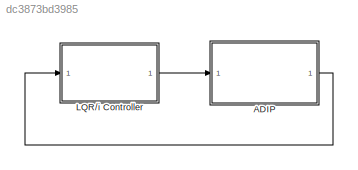
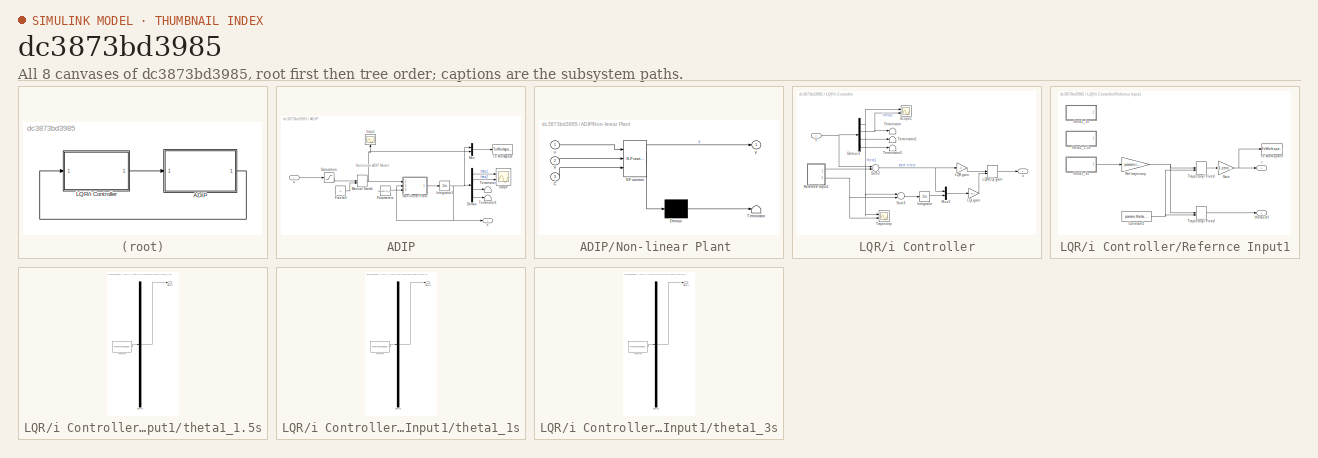
[diagram: thumbnail index - all 8 canvases of the model, root first then tree order]
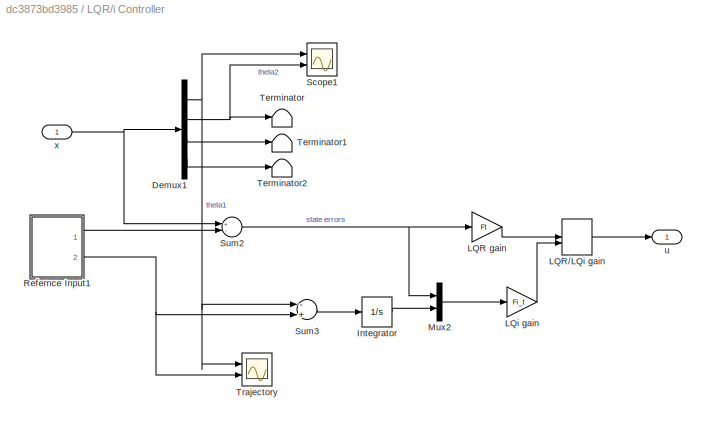
MODEL slx_dc3873bd3985
KIND model
CONFIG AbsTol = auto
CONFIG EnableMultiTasking = off
CONFIG FixedStep = 0.005
CONFIG MaxStep = 0.2
CONFIG MinStep = auto
CONFIG RelTol = 1e-3
CONFIG SampleTimeConstraint = Unconstrained
CONFIG Solver = ode45
CONFIG SolverName = ode45
CONFIG StartTime = 0.0
CONFIG StopTime = 25
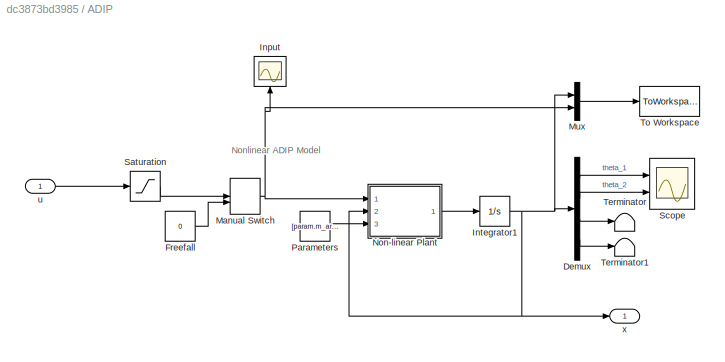
BLOCK [SubSystem] ADIP
  Ports = [1, 1]
  RequestExecContextInheritance = off
BLOCK [Demux] ADIP/Demux
  DisplayOption = bar
  Ports = [1, 4]
BLOCK [Constant] ADIP/Freefall
  Value = 0
BLOCK [Scope] ADIP/Input
  Floating = off
  NumInputPorts = 1
  Ports = [1]
  ScopeSpecificationString = Simulink.scopes.TimeScopeBlockCfg('CurrentConfiguration', extmgr.ConfigurationSet(extmgr.Configuration('Core','General UI',true),extmgr.Configuration('Core','Source UI',true),extmgr.Configuration('Sources','WiredSimulink',true,'DataLoggingVariableName','ScopeData1'),extmgr.Configuration('Visuals','Time Domain',true,'SerializedDisplays',{struct('MinYLimReal','-1.00000','MaxYLimReal','1.00000','YLab...<+1442ch>
BLOCK [Integrator] ADIP/Integrator1
  InitialCondition = param.theta0
  Ports = [1, 1]
BLOCK [ManualSwitch] ADIP/Manual Switch
BLOCK [Mux] ADIP/Mux
  DisplayOption = bar
  Inputs = 2
  Ports = [2, 1]
BLOCK [SubSystem] ADIP/Non-linear Plant 
  ErrorFcn = Stateflow.Translate.translate
  PermitHierarchicalResolution = ExplicitOnly
  Ports = [3, 1]
  RequestExecContextInheritance = off
  SFBlockType = MATLAB Function
  TreatAsAtomicUnit = on
BLOCK [Demux] ADIP/Non-linear Plant / Demux 
  Outputs = 1
  Ports = [1, 1]
BLOCK [S-Function] ADIP/Non-linear Plant / SFunction 
  EnableBusSupport = on
  FunctionName = sf_sfun
  PortCounts = [3 2]
  Ports = [3, 2]
  SFcnIsStateOwnerBlock = off
  SFunctionDeploymentMode = off
  Tag = Stateflow S-Function ADIP_LocalSim 2
BLOCK [Terminator] ADIP/Non-linear Plant / Terminator 
BLOCK [Inport] ADIP/Non-linear Plant /C
  IconDisplay = Port number
  Port = 3
BLOCK [Inport] ADIP/Non-linear Plant /Y
  IconDisplay = Port number
  Port = 2
BLOCK [Inport] ADIP/Non-linear Plant /u
  IconDisplay = Port number
BLOCK [Outport] ADIP/Non-linear Plant /y
  IconDisplay = Port number
BLOCK [Constant] ADIP/Parameters
  Value = [param.m_arm,param.m_pend,param.m_hinge,param.l_pivot,param.l_pend,param.g,param.Jarm,param.Jpend,param.Jl,param.Jhinge, param.C_arm,param.C_pend]
BLOCK [Saturate] ADIP/Saturation
  InputPortMap = u0
  LowerLimit = -2.5
  Ports = [1, 1]
  UpperLimit = 2.5
BLOCK [Scope] ADIP/Scope
  Floating = off
  NumInputPorts = 2
  Ports = [2]
  ScopeSpecificationString = Simulink.scopes.TimeScopeBlockCfg('CurrentConfiguration', extmgr.ConfigurationSet(extmgr.Configuration('Core','General UI',true,'FigureColor',[0 0 0]),extmgr.Configuration('Core','Source UI',true),extmgr.Configuration('Sources','WiredSimulink',true,'DataLoggingVariableName','ScopeData2'),extmgr.Configuration('Visuals','Time Domain',true,'SerializedDisplays',{struct('MinYLimReal','-3775834382423303...<+2841ch>
BLOCK [Terminator] ADIP/Terminator
BLOCK [Terminator] ADIP/Terminator1
BLOCK [ToWorkspace] ADIP/To Workspace
  FixptAsFi = on
  MaxDataPoints = inf
  Ports = [1]
  SampleTime = -1
  VariableName = data
BLOCK [Inport] ADIP/u
  IconDisplay = Port number
BLOCK [Outport] ADIP/x
  IconDisplay = Port number
BLOCK [SubSystem] LQR//i Controller
  Ports = [1, 1]
  RequestExecContextInheritance = off
BLOCK [Demux] LQR//i Controller/Demux1
  DisplayOption = bar
  Ports = [1, 4]
BLOCK [Integrator] LQR//i Controller/Integrator
  Ports = [1, 1]
BLOCK [Gain] LQR//i Controller/LQR gain
  Gain = Ft
  Multiplication = Matrix(K*u)
  OutDataTypeStr = Inherit: Inherit via internal rule
  ParamDataTypeStr = Inherit: Inherit via internal rule
  SaturateOnIntegerOverflow = off
BLOCK [ManualSwitch] LQR//i Controller/LQR//LQi gain
  CurrentSetting = 0
BLOCK [Gain] LQR//i Controller/LQi gain
  Gain = Fi_t
  Multiplication = Matrix(K*u)
  OutDataTypeStr = Inherit: Inherit via internal rule
  ParamDataTypeStr = Inherit: Inherit via internal rule
  SaturateOnIntegerOverflow = off
BLOCK [Mux] LQR//i Controller/Mux2
  DisplayOption = bar
  Inputs = 2
  Ports = [2, 1]
BLOCK [SubSystem] LQR//i Controller/Refernce Input1
  Ports = [0, 2]
  RequestExecContextInheritance = off
BLOCK [Constant] LQR//i Controller/Refernce Input1/Constant1
  Value = param.thetaT(1)
BLOCK [Gain] LQR//i Controller/Refernce Input1/Gain
  Gain = [1,zeros(1,size(At,1)-1)]
  OutDataTypeStr = Inherit: Inherit via internal rule
  ParamDataTypeStr = Inherit: Inherit via internal rule
  SaturateOnIntegerOverflow = off
BLOCK [Gain] LQR//i Controller/Refernce Input1/Ref trajectory
  Gain = param.rmax
  OutDataTypeStr = Inherit: Inherit via internal rule
  ParamDataTypeStr = Inherit: Inherit via internal rule
  SaturateOnIntegerOverflow = off
BLOCK [ToWorkspace] LQR//i Controller/Refernce Input1/To Workspace
  FixptAsFi = on
  MaxDataPoints = inf
  Ports = [1]
  SampleTime = -1
  VariableName = Ref
BLOCK [ManualSwitch] LQR//i Controller/Refernce Input1/Trajectory// Fixed
BLOCK [ManualSwitch] LQR//i Controller/Refernce Input1/Trajectory// Fixed 
BLOCK [Outport] LQR//i Controller/Refernce Input1/r
  IconDisplay = Port number
BLOCK [SubSystem] LQR//i Controller/Refernce Input1/theta1_1.5s
  ClipboardFcn = sigbuilder_block('clipboard');
  CloseFcn = sigbuilder_block('close');
  Commented = on
  ContinueFcn = sigbuilder_block('continue');
  CopyFcn = sigbuilder_block('copy');
  DeleteFcn = sigbuilder_block('delete');
  LoadFcn = sigbuilder_block('load');
  MaskHideContents = on
  ModelCloseFcn = sigbuilder_block('modelClose');
  NameChangeFcn = sigbuilder_block('namechange');
  OpenFcn = sigbuilder_block('open',[5.5 30 1909 958 ]);
  PauseFcn = sigbuilder_block('pause');
  Ports = [0, 1]
  PreSaveFcn = sigbuilder_block('preSave');
  RequestExecContextInheritance = off
  StartFcn = sigbuilder_block('start');
  StopFcn = sigbuilder_block('stop');
  Tag = STV Subsys
BLOCK [Demux] LQR//i Controller/Refernce Input1/theta1_1.5s/Demux
  Outputs = 1
  Ports = [1, 1]
  Tag = STV Demux
BLOCK [FromWorkspace] LQR//i Controller/Refernce Input1/theta1_1.5s/FromWs
  SampleTime = 0
  Tag = STV FromWs
  VariableName = tuvar
  ZeroCross = on
BLOCK [Outport] LQR//i Controller/Refernce Input1/theta1_1.5s/Signal 1
  IconDisplay = Port number
  Tag = STV Outport
BLOCK [SubSystem] LQR//i Controller/Refernce Input1/theta1_1s
  ClipboardFcn = sigbuilder_block('clipboard');
  CloseFcn = sigbuilder_block('close');
  Commented = on
  ContinueFcn = sigbuilder_block('continue');
  CopyFcn = sigbuilder_block('copy');
  DeleteFcn = sigbuilder_block('delete');
  LoadFcn = sigbuilder_block('load');
  MaskHideContents = on
  ModelCloseFcn = sigbuilder_block('modelClose');
  NameChangeFcn = sigbuilder_block('namechange');
  OpenFcn = sigbuilder_block('open',[5.5 30 1909 958 ]);
  PauseFcn = sigbuilder_block('pause');
  Ports = [0, 1]
  PreSaveFcn = sigbuilder_block('preSave');
  RequestExecContextInheritance = off
  StartFcn = sigbuilder_block('start');
  StopFcn = sigbuilder_block('stop');
  Tag = STV Subsys
BLOCK [Demux] LQR//i Controller/Refernce Input1/theta1_1s/Demux
  Outputs = 1
  Ports = [1, 1]
  Tag = STV Demux
BLOCK [FromWorkspace] LQR//i Controller/Refernce Input1/theta1_1s/FromWs
  SampleTime = 0
  Tag = STV FromWs
  VariableName = tuvar
  ZeroCross = on
BLOCK [Outport] LQR//i Controller/Refernce Input1/theta1_1s/Signal 1
  IconDisplay = Port number
  Tag = STV Outport
BLOCK [SubSystem] LQR//i Controller/Refernce Input1/theta1_3s
  ClipboardFcn = sigbuilder_block('clipboard');
  CloseFcn = sigbuilder_block('close');
  ContinueFcn = sigbuilder_block('continue');
  CopyFcn = sigbuilder_block('copy');
  DeleteFcn = sigbuilder_block('delete');
  LoadFcn = sigbuilder_block('load');
  MaskHideContents = on
  ModelCloseFcn = sigbuilder_block('modelClose');
  NameChangeFcn = sigbuilder_block('namechange');
  OpenFcn = sigbuilder_block('open',[5.5 30 1909 958 ]);
  PauseFcn = sigbuilder_block('pause');
  Ports = [0, 1]
  PreSaveFcn = sigbuilder_block('preSave');
  RequestExecContextInheritance = off
  StartFcn = sigbuilder_block('start');
  StopFcn = sigbuilder_block('stop');
  Tag = STV Subsys
BLOCK [Demux] LQR//i Controller/Refernce Input1/theta1_3s/Demux
  Outputs = 1
  Ports = [1, 1]
  Tag = STV Demux
BLOCK [FromWorkspace] LQR//i Controller/Refernce Input1/theta1_3s/FromWs
  SampleTime = 0
  Tag = STV FromWs
  VariableName = tuvar
  ZeroCross = on
BLOCK [Outport] LQR//i Controller/Refernce Input1/theta1_3s/Signal 1
  IconDisplay = Port number
  Tag = STV Outport
BLOCK [Outport] LQR//i Controller/Refernce Input1/theta1ref
  IconDisplay = Port number
  Port = 2
BLOCK [Scope] LQR//i Controller/Scope1
  Floating = off
  NumInputPorts = 2
  Ports = [2]
  ScopeSpecificationString = Simulink.scopes.TimeScopeBlockCfg('CurrentConfiguration', extmgr.ConfigurationSet(extmgr.Configuration('Core','General UI',true),extmgr.Configuration('Core','Source UI',true),extmgr.Configuration('Sources','WiredSimulink',true,'DataLoggingVariableName','ScopeData1'),extmgr.Configuration('Visuals','Time Domain',true,'SerializedDisplays',{struct('MinYLimReal','-1.04578','MaxYLimReal','1.12776','YLab...<+1445ch>
BLOCK [Sum] LQR//i Controller/Sum2
  InputSameDT = off
  Inputs = +-
  OutDataTypeStr = Inherit: Inherit via internal rule
  Ports = [2, 1]
  SaturateOnIntegerOverflow = off
BLOCK [Sum] LQR//i Controller/Sum3
  InputSameDT = off
  Inputs = -+
  OutDataTypeStr = Inherit: Inherit via internal rule
  Ports = [2, 1]
  SaturateOnIntegerOverflow = off
BLOCK [Terminator] LQR//i Controller/Terminator
BLOCK [Terminator] LQR//i Controller/Terminator1
BLOCK [Terminator] LQR//i Controller/Terminator2
BLOCK [Scope] LQR//i Controller/Trajectory
  Floating = off
  NumInputPorts = 2
  Ports = [2]
  ScopeSpecificationString = Simulink.scopes.TimeScopeBlockCfg('CurrentConfiguration', extmgr.ConfigurationSet(extmgr.Configuration('Core','General UI',true),extmgr.Configuration('Core','Source UI',true),extmgr.Configuration('Sources','WiredSimulink',true,'DataLoggingVariableName','ScopeData2'),extmgr.Configuration('Visuals','Time Domain',true,'SerializedDisplays',{struct('MinYLimReal','-1.09083','MaxYLimReal','1.09083','YLab...<+1493ch>
BLOCK [Outport] LQR//i Controller/u
  IconDisplay = Port number
BLOCK [Inport] LQR//i Controller/x
  IconDisplay = Port number
ANNOTATION ADIP: Nonlinear ADIP Model
LINE ADIP/Demux:1 -> ADIP/Scope:1
LINE ADIP/Demux:2 -> ADIP/Scope:2
LINE ADIP/Demux:3 -> ADIP/Terminator:1
LINE ADIP/Demux:4 -> ADIP/Terminator1:1
LINE ADIP/Freefall:1 -> ADIP/Manual Switch:2
NET ADIP/Integrator1:1 -> ADIP/Demux:1, ADIP/Mux:1, ADIP/Non-linear Plant :2, ADIP/x:1
NET ADIP/Manual Switch:1 -> ADIP/Input:1, ADIP/Mux:2, ADIP/Non-linear Plant :1
LINE ADIP/Mux:1 -> ADIP/To Workspace:1
LINE ADIP/Non-linear Plant :1 -> ADIP/Integrator1:1
LINE ADIP/Parameters:1 -> ADIP/Non-linear Plant :3
LINE ADIP/Saturation:1 -> ADIP/Manual Switch:1
LINE ADIP/u:1 -> ADIP/Saturation:1
LINE ADIP:1 -> LQR//i Controller:1
NET LQR//i Controller/Demux1:1 -> LQR//i Controller/Scope1:1, LQR//i Controller/Sum3:1, LQR//i Controller/Trajectory:1
NET LQR//i Controller/Demux1:2 -> LQR//i Controller/Scope1:2, LQR//i Controller/Terminator:1
LINE LQR//i Controller/Demux1:3 -> LQR//i Controller/Terminator1:1
LINE LQR//i Controller/Demux1:4 -> LQR//i Controller/Terminator2:1
LINE LQR//i Controller/Integrator:1 -> LQR//i Controller/Mux2:2
LINE LQR//i Controller/LQR gain:1 -> LQR//i Controller/LQR//LQi gain:1
LINE LQR//i Controller/LQR//LQi gain:1 -> LQR//i Controller/u:1
LINE LQR//i Controller/LQi gain:1 -> LQR//i Controller/LQR//LQi gain:2
LINE LQR//i Controller/Mux2:1 -> LQR//i Controller/LQi gain:1
NET LQR//i Controller/Refernce Input1/Constant1:1 -> LQR//i Controller/Refernce Input1/Trajectory// Fixed :2, LQR//i Controller/Refernce Input1/Trajectory// Fixed:2
NET LQR//i Controller/Refernce Input1/Gain:1 -> LQR//i Controller/Refernce Input1/To Workspace:1, LQR//i Controller/Refernce Input1/r:1
NET LQR//i Controller/Refernce Input1/Ref trajectory:1 -> LQR//i Controller/Refernce Input1/Trajectory// Fixed :1, LQR//i Controller/Refernce Input1/Trajectory// Fixed:1
LINE LQR//i Controller/Refernce Input1/Trajectory// Fixed :1 -> LQR//i Controller/Refernce Input1/Gain:1
LINE LQR//i Controller/Refernce Input1/Trajectory// Fixed:1 -> LQR//i Controller/Refernce Input1/theta1ref:1
LINE LQR//i Controller/Refernce Input1/theta1_3s:1 -> LQR//i Controller/Refernce Input1/Ref trajectory:1
LINE LQR//i Controller/Refernce Input1:1 -> LQR//i Controller/Sum2:2
NET LQR//i Controller/Refernce Input1:2 -> LQR//i Controller/Sum3:2, LQR//i Controller/Trajectory:2
NET LQR//i Controller/Sum2:1 -> LQR//i Controller/LQR gain:1, LQR//i Controller/Mux2:1
LINE LQR//i Controller/Sum3:1 -> LQR//i Controller/Integrator:1
NET LQR//i Controller/x:1 -> LQR//i Controller/Demux1:1, LQR//i Controller/Sum2:1
LINE LQR//i Controller:1 -> ADIP:1
note: NET lines group one-source signal fan-out (src -> all destinations, sorted); 1:1 wires keep LINE
CHART ADIP/Non-linear 
Plant
 states=1 transitions=1
  STATE_LABEL 'eML_blk_kernel()'
  STATE_LABEL 'SCRIPT:\nfunction y = fcn(u,Y,C)\nm1=C(1); % Mass of arm\nm2=C(2); % Mass of pendulum\nmh = C(3); % Mass of Hinge\nl1  = C(4); % Length of arm\nl2 = C(5); % Length of pendulum\ng_ = C(6);\nJ_arm = C(7);\nJ_pend = C(8);\nJ_motor = C(9);\nJ_sensor = C(10);\nfv1 = C(11);\nfv2 = C(12);\n\ny1 = Y(1);  % actual theta1          \ny2 = Y(2);  % actual theta2\ny3 = Y(3);  % actual theta1d\ny4 = Y(4);  % actual theta2d\n\ndy1 ...<+1551ch>'
